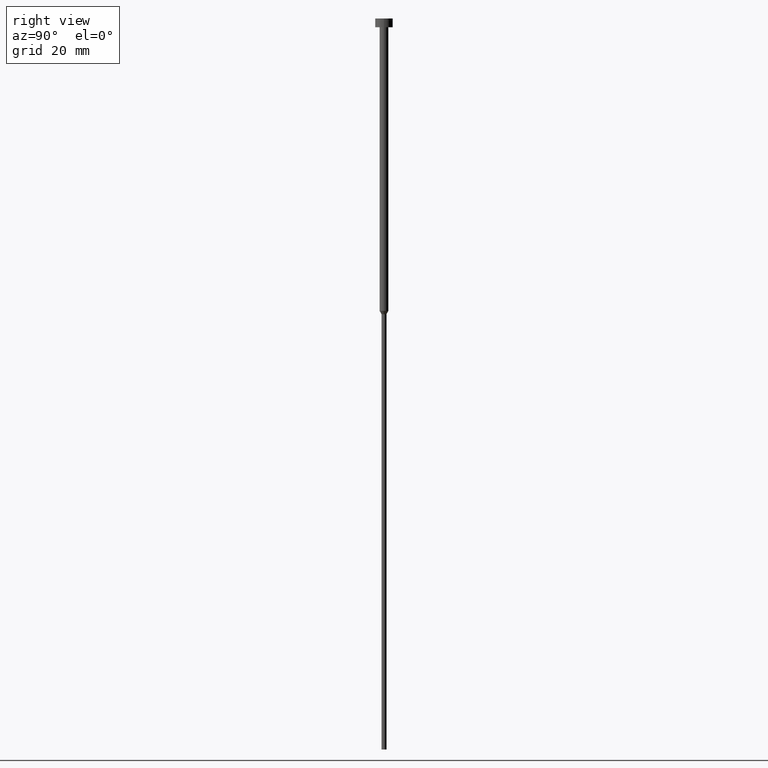
[diagram: clean part render]
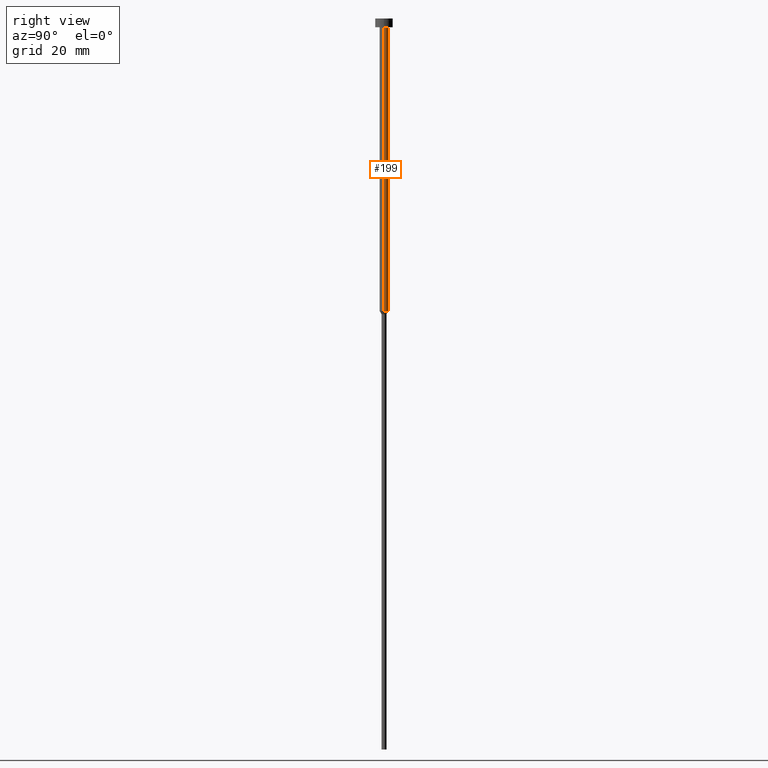
[diagram: same view with one face highlighted and labeled with its STEP entity id]
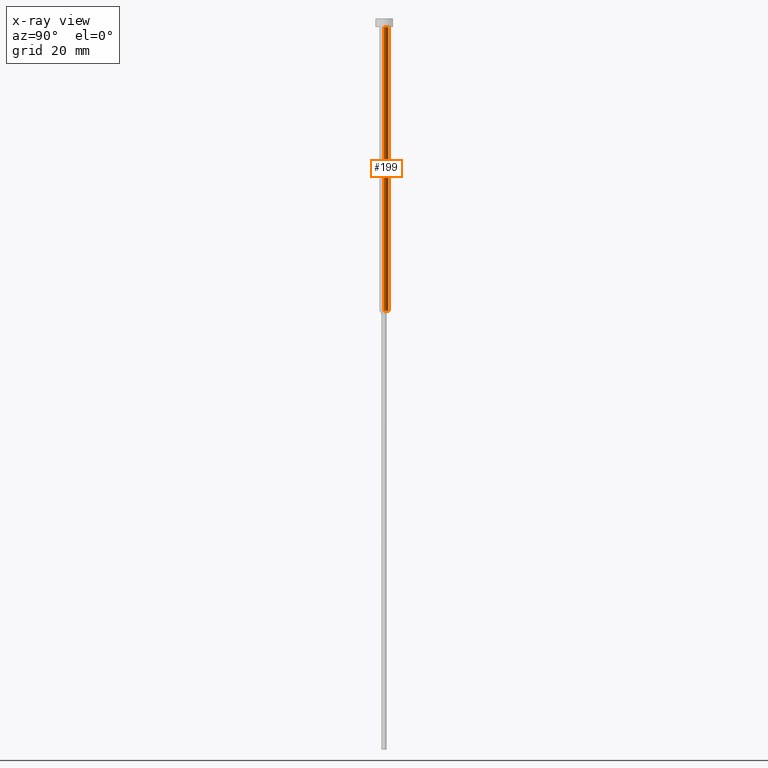
[diagram: x-ray of the same camera — body ghosted, the highlighted face saturated]
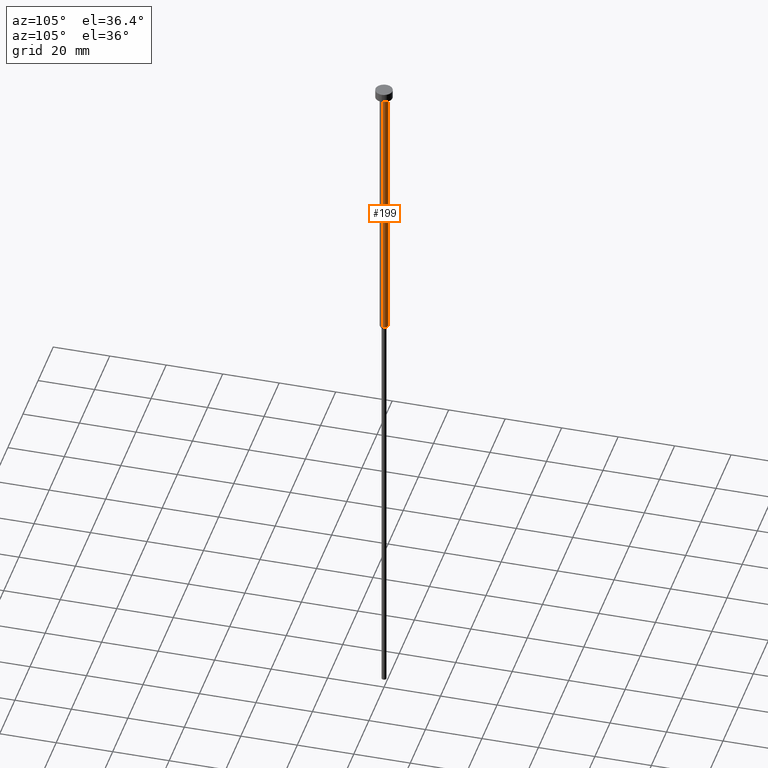
[diagram: same view with one face highlighted and labeled with its STEP entity id]
A machine part, right view. The second image highlights one B-rep face of the part: STEP entity #199.
The next image is the same camera in x-ray: the body ghosted, the highlighted face saturated — about 0% of this face is hidden behind the body in this view.
A second angle (auxiliary view) of the same face is appended — the face is thin or edge-on in the first view.
In plain terms, the highlighted cylindrical surface (edge-blend (fillet) strip) has radius 1.5 mm, axis along (-0, -0, 1).
Its self-contained STEP definition (entity closure, byte-faithful):
#2 = LINE ( 'NONE', #190, #108 ) ;
#19 = EDGE_CURVE ( 'NONE', #233, #101, #293, .T. ) ;
#20 = CARTESIAN_POINT ( 'NONE',  ( -1.500000000000000000, 1.836970198721029934E-16, -100.0000000000000000 ) ) ;
#40 = CARTESIAN_POINT ( 'NONE',  ( 0.000000000000000000, 0.000000000000000000, -3.000000000000000888 ) ) ;
#44 = DIRECTION ( 'NONE',  ( 1.000000000000000000, 0.000000000000000000, 0.000000000000000000 ) ) ;
#53 = CYLINDRICAL_SURFACE ( 'NONE', #339, 1.500000000000000000 ) ;
#84 = EDGE_CURVE ( 'NONE', #205, #233, #187, .T. ) ;
#94 = EDGE_LOOP ( 'NONE', ( #153, #261, #119, #142 ) ) ;
#95 = CIRCLE ( 'NONE', #285, 1.500000000000000000 ) ;
#101 = VERTEX_POINT ( 'NONE', #218 ) ;
#108 = VECTOR ( 'NONE', #274, 1000.000000000000000 ) ;
#119 = ORIENTED_EDGE ( 'NONE', *, *, #19, .F. ) ;
#135 = CARTESIAN_POINT ( 'NONE',  ( 1.500000000000000000, 0.000000000000000000, -3.000000000000000888 ) ) ;
#142 = ORIENTED_EDGE ( 'NONE', *, *, #84, .F. ) ;
#153 = ORIENTED_EDGE ( 'NONE', *, *, #325, .T. ) ;
#160 = AXIS2_PLACEMENT_3D ( 'NONE', #40, #208, #44 ) ;
#178 = VECTOR ( 'NONE', #182, 1000.000000000000000 ) ;
#182 = DIRECTION ( 'NONE',  ( -0.000000000000000000, -0.000000000000000000, 1.000000000000000000 ) ) ;
#187 = LINE ( 'NONE', #242, #178 ) ;
#188 = CARTESIAN_POINT ( 'NONE',  ( 1.500000000000000000, 0.000000000000000000, -100.0000000000000000 ) ) ;
#190 = CARTESIAN_POINT ( 'NONE',  ( -1.500000000000000000, 1.836970198721029934E-16, 0.000000000000000000 ) ) ;
#191 = VERTEX_POINT ( 'NONE', #20 ) ;
#194 = CARTESIAN_POINT ( 'NONE',  ( 0.000000000000000000, 0.000000000000000000, -100.0000000000000000 ) ) ;
#197 = DIRECTION ( 'NONE',  ( 1.000000000000000000, 0.000000000000000000, 0.000000000000000000 ) ) ;
#199 = ADVANCED_FACE ( 'NONE', ( #349 ), #53, .T. ) ;
#205 = VERTEX_POINT ( 'NONE', #188 ) ;
#208 = DIRECTION ( 'NONE',  ( -0.000000000000000000, -0.000000000000000000, 1.000000000000000000 ) ) ;
#218 = CARTESIAN_POINT ( 'NONE',  ( -1.500000000000000000, 1.836970198721029934E-16, -3.000000000000000888 ) ) ;
#219 = DIRECTION ( 'NONE',  ( -0.000000000000000000, -0.000000000000000000, 1.000000000000000000 ) ) ;
#233 = VERTEX_POINT ( 'NONE', #135 ) ;
#242 = CARTESIAN_POINT ( 'NONE',  ( 1.500000000000000000, 0.000000000000000000, 0.000000000000000000 ) ) ;
#261 = ORIENTED_EDGE ( 'NONE', *, *, #297, .T. ) ;
#274 = DIRECTION ( 'NONE',  ( -0.000000000000000000, -0.000000000000000000, 1.000000000000000000 ) ) ;
#276 = DIRECTION ( 'NONE',  ( -0.000000000000000000, -0.000000000000000000, 1.000000000000000000 ) ) ;
#285 = AXIS2_PLACEMENT_3D ( 'NONE', #194, #276, #197 ) ;
#287 = CARTESIAN_POINT ( 'NONE',  ( 0.000000000000000000, 0.000000000000000000, 0.000000000000000000 ) ) ;
#293 = CIRCLE ( 'NONE', #160, 1.500000000000000000 ) ;
#297 = EDGE_CURVE ( 'NONE', #191, #101, #2, .T. ) ;
#324 = DIRECTION ( 'NONE',  ( 1.000000000000000000, 0.000000000000000000, 0.000000000000000000 ) ) ;
#325 = EDGE_CURVE ( 'NONE', #205, #191, #95, .T. ) ;
#339 = AXIS2_PLACEMENT_3D ( 'NONE', #287, #219, #324 ) ;
#349 = FACE_OUTER_BOUND ( 'NONE', #94, .T. ) ;